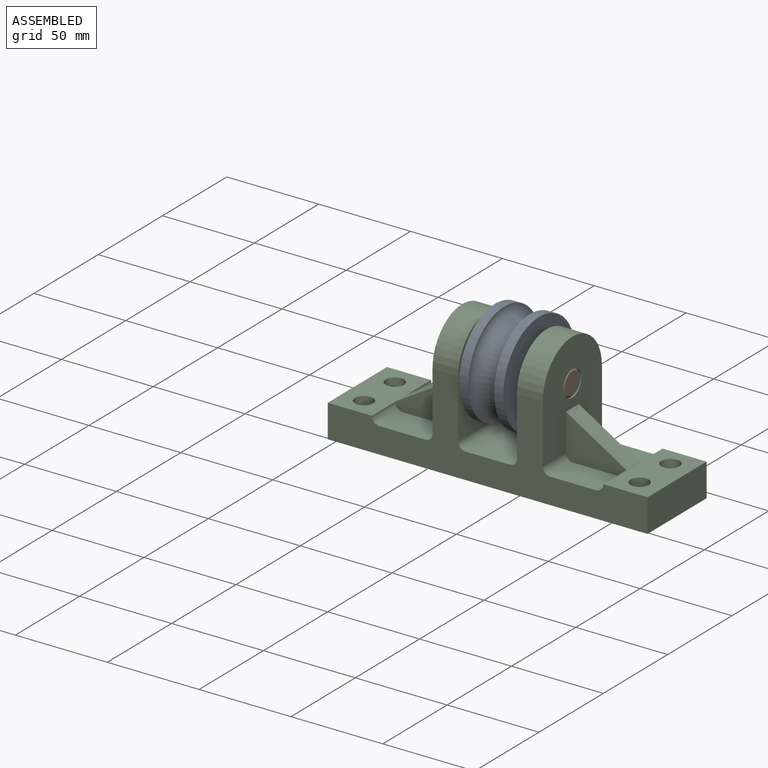
[diagram: assembled view]
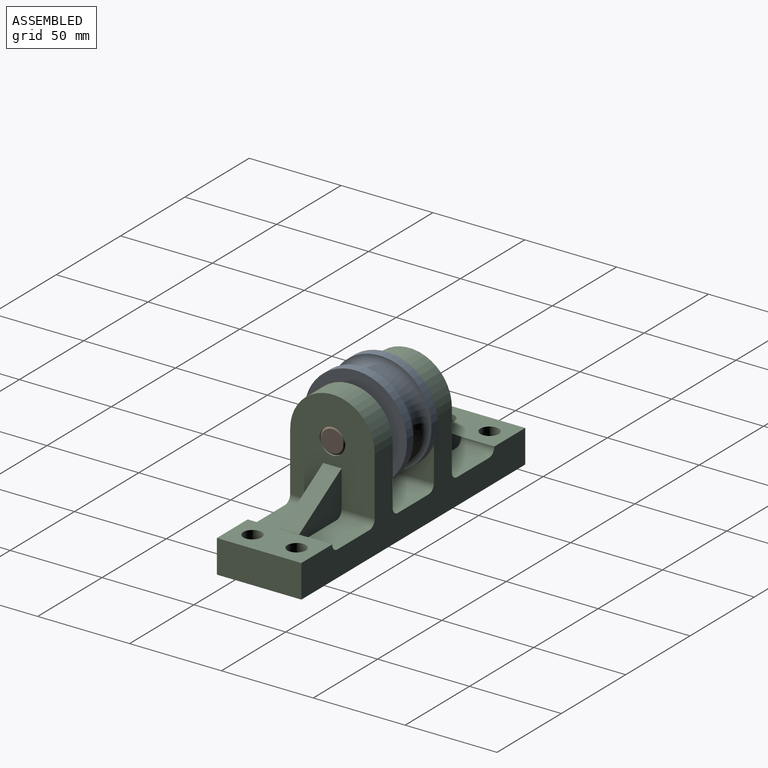
[diagram: assembled view, second angle]
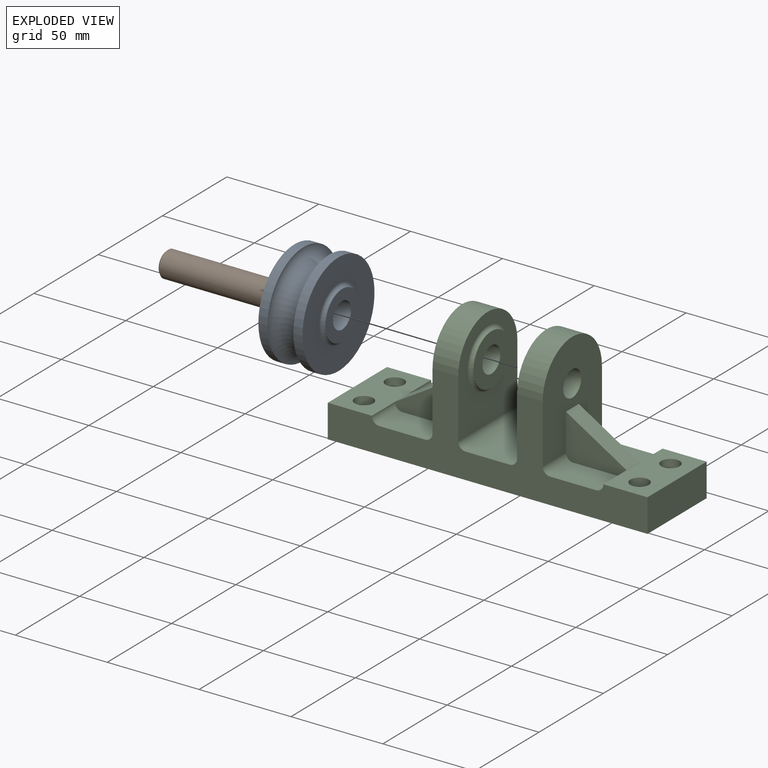
[diagram: exploded view]
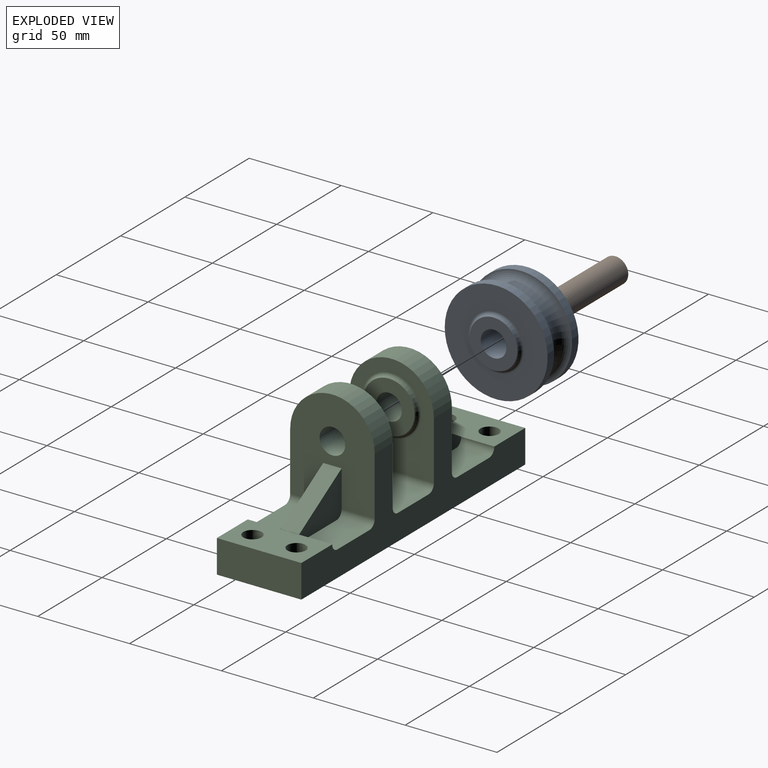
[diagram: exploded view, second angle]
ASSEMBLY  parts=3 mates=4
PART A: 10 faces, bbox 71.4x71.4x28 mm
  f0: plane 56x56mm, normal (0,0,1), area 1756.2mm2, adj f4,f8
  f1: plane 56x56mm, normal (0,0,-1), area 1756.2mm2, adj f2,f9
  f2: cylinder r=28mm len=56mm, axis (0,0,-1), area 879.6mm2, adj f1,f3
  f3: torus R=28mm, axis (0,0,-1), area 3253.1mm2, adj f2,f4
  f4: cylinder r=28mm len=56mm, axis (0,0,-1), area 879.6mm2, adj f0,f3
  f5: plane 26x26mm, normal (0,0,-1), area 377mm2, adj f6,f9
  f6: cylinder r=7mm len=28mm, axis (0,0,1), area 1231.5mm2, adj f5,f7
  f7: plane 26x26mm, normal (0,0,1), area 377mm2, adj f6,f8
  f8: torus R=15mm, axis (0,0,1), area 271mm2, adj f0,f7
  f9: torus R=15mm, axis (0,0,-1), area 271mm2, adj f1,f5
PART B: 5 faces, bbox 60x14x14 mm
  f0: cylinder r=7mm len=58mm, axis (-1,0,0), area 2551mm2, adj f3,f4
  f1: plane 12x12mm, normal (1,0,0), area 113.1mm2, adj f4
  f2: plane 12x12mm, normal (-1,0,0), area 113.1mm2, adj f3
  f3: cone r=7mm half-angle=45deg, axis (1,0,0), area 57.8mm2, adj f0,f2
  f4: cone r=6mm half-angle=45deg, axis (-1,0,0), area 57.8mm2, adj f0,f1
PART C: 46 faces, bbox 174x46x73 mm
  f0: plane 25x18mm, normal (0,0,1), area 450mm2, adj f7,f33,f36,f37
  f1: plane 25x18mm, normal (0,0,1), area 450mm2, adj f5,f29,f43,f45
  f2: plane 46x24mm, normal (0,0,1), area 1104mm2, adj f5,f7,f40,f42
  f3: plane 25x18mm, normal (0,0,1), area 450mm2, adj f7,f30,f38,f39
  f4: plane 46x24mm, normal (0,0,1), area 946.9mm2, adj f5,f7,f10,f11,f12,f28,f38,f45
  f5: plane 174x50mm, normal (0,1,0), area 3656.6mm2, adj f1,f2,f4,f6,f12,f13,f14,f15
  f6: plane 46x18mm, normal (-1,0,0), area 828mm2, adj f5,f7,f13,f14
  f7: plane 174x50mm, normal (0,-1,0), area 3656.6mm2, adj f0,f2,f3,f4,f6,f12,f13,f14
  f8: cylinder r=5mm len=18mm, axis (0,0,-1), area 565.5mm2, adj f13,f14
  f9: cylinder r=5mm len=18mm, axis (0,0,-1), area 565.5mm2, adj f13,f14
  f10: cylinder r=5mm len=18mm, axis (0,0,-1), area 565.5mm2, adj f4,f14
  f11: cylinder r=5mm len=18mm, axis (0,0,-1), area 565.5mm2, adj f4,f14
  f12: plane 46x18mm, normal (1,0,0), area 828mm2, adj f4,f5,f7,f14
  f13: plane 46x24mm, normal (0,0,1), area 946.9mm2, adj f5,f6,f7,f8,f9,f34,f36,f44
  f14: plane 174x46mm, normal (0,0,-1), area 7689.8mm2, adj f5,f6,f7,f8,f9,f10,f11,f12
  f15: plane 25x18mm, normal (0,0,1), area 450mm2, adj f5,f32,f41,f44
  f16: plane 55x46mm, normal (1,0,0), area 1949mm2, adj f5,f7,f18,f19,f29,f30,f31,f39
  f17: plane 55x46mm, normal (-1,0,0), area 1498.7mm2, adj f5,f7,f19,f21,f42
  f18: cylinder r=7mm len=16mm, axis (-1,0,0), area 703.7mm2, adj f16,f20
  f19: cylinder r=23mm len=46mm, axis (-1,0,0), area 1011.6mm2, adj f5,f7,f16,f17
  f20: plane 28x28mm, normal (-1,0,0), area 461.8mm2, adj f18,f21
  f21: torus R=16mm, axis (1,0,0), area 290.7mm2, adj f17,f20
  f22: plane 55x46mm, normal (-1,0,0), area 1949mm2, adj f5,f7,f24,f25,f32,f33,f35,f37
  f23: plane 55x46mm, normal (1,0,0), area 1498.7mm2, adj f5,f7,f25,f27,f40
  f24: cylinder r=7mm len=16mm, axis (1,0,0), area 703.7mm2, adj f22,f26
  f25: cylinder r=23mm len=46mm, axis (1,0,0), area 1011.6mm2, adj f5,f7,f22,f23
  f26: plane 28x28mm, normal (1,0,0), area 461.8mm2, adj f24,f27
  f27: torus R=16mm, axis (-1,0,0), area 290.7mm2, adj f23,f26
  f28: plane 10x0.06mm, normal (1,0,0), area 0.6mm2, adj f4,f29,f30,f31
  f29: plane 33x24mm, normal (0,1,0), area 456.2mm2, adj f1,f16,f28,f31,f43,f45
  f30: plane 33x24mm, normal (0,-1,0), area 456.2mm2, adj f3,f16,f28,f31,f38,f39
  f31: plane 33x19.94mm, normal (0.52,0,0.86), area 385.6mm2, adj f16,f28,f29,f30
  f32: plane 33x24mm, normal (0,1,0), area 456.2mm2, adj f15,f22,f34,f35,f41,f44
  f33: plane 33x24mm, normal (0,-1,0), area 456.2mm2, adj f0,f22,f34,f35,f36,f37
  f34: plane 10x0.06mm, normal (-1,0,0), area 0.6mm2, adj f13,f32,f33,f35
  f35: plane 33x19.94mm, normal (-0.52,0,0.86), area 385.6mm2, adj f22,f32,f33,f34
  f36: cylinder r=4mm len=18mm, axis (0,-1,0), area 113.1mm2, adj f0,f7,f13,f33
  f37: cylinder r=4mm len=18mm, axis (0,1,0), area 113.1mm2, adj f0,f7,f22,f33
  f38: cylinder r=4mm len=18mm, axis (0,1,0), area 113.1mm2, adj f3,f4,f7,f30
  f39: cylinder r=4mm len=18mm, axis (0,1,0), area 113.1mm2, adj f3,f7,f16,f30
  f40: cylinder r=4mm len=46mm, axis (0,-1,0), area 289mm2, adj f2,f5,f7,f23
  f41: cylinder r=4mm len=18mm, axis (0,1,0), area 113.1mm2, adj f5,f15,f22,f32
  f42: cylinder r=4mm len=46mm, axis (0,-1,0), area 289mm2, adj f2,f5,f7,f17
  f43: cylinder r=4mm len=18mm, axis (0,1,0), area 113.1mm2, adj f1,f5,f16,f29
  f44: cylinder r=4mm len=18mm, axis (0,-1,0), area 113.1mm2, adj f5,f13,f15,f32
  f45: cylinder r=4mm len=18mm, axis (0,1,0), area 113.1mm2, adj f1,f4,f5,f29
PLACE A rot(axis=(0.58,0.58,0.58),120deg) t=(-25.67,16.84,50.6)mm
PLACE B t=(-13.67,16.84,96.94)mm
PLACE C t=(-13.67,16.84,0.6)mm fixed
MATE cylindrical C.f18 <-> B.f0  axis (-1,0,0) through (-43.67,16.84,50.6)mm
MATE cylindrical C.f18 <-> A.f6  axis (-1,0,0) through (-43.67,16.84,50.6)mm
MATE planar A.f8 <-> C.f18  axis (-1,0,0) through (-27.67,16.84,50.6)mm
MATE planar B.f0 <-> C.f22  axis (-1,0,0) through (-43.67,16.84,50.6)mm
